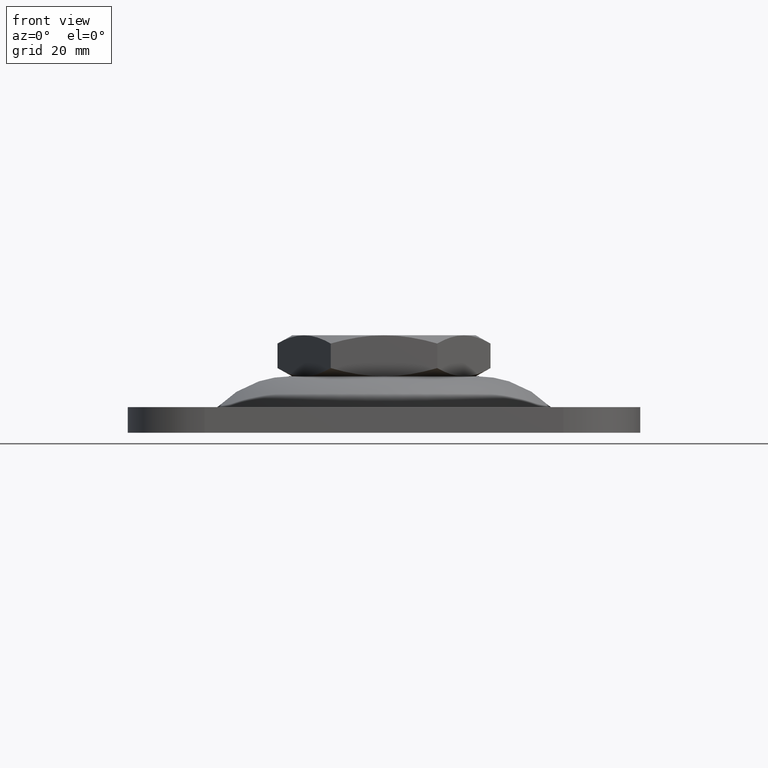
[diagram: clean part render]
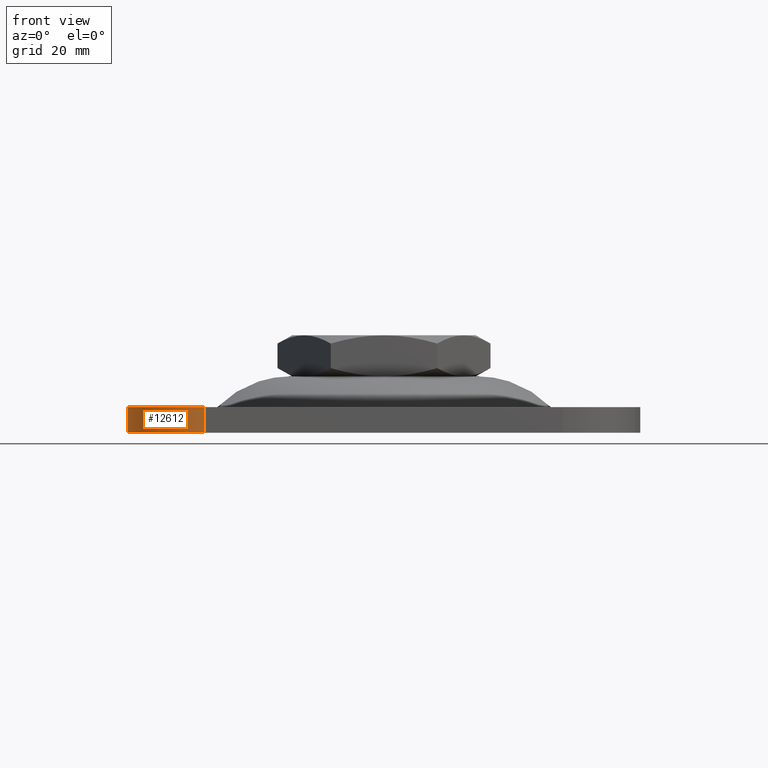
[diagram: same view with one face highlighted and labeled with its STEP entity id]
A machine part, front view. The second image highlights one B-rep face of the part: STEP entity #12612.
In plain terms, the highlighted cylindrical surface (partial cylindrical patch) has radius 15 mm, axis along (0, 0, 1).
Its self-contained STEP definition (entity closure, byte-faithful):
#252 = VERTEX_POINT ( 'NONE', #12864 ) ;
#529 = DIRECTION ( 'NONE',  ( -1.000000000000000000, 0.000000000000000000, 0.000000000000000000 ) ) ;
#608 = DIRECTION ( 'NONE',  ( 0.000000000000000000, 0.000000000000000000, -1.000000000000000000 ) ) ;
#986 = EDGE_CURVE ( 'NONE', #252, #2182, #9898, .T. ) ;
#1169 = EDGE_CURVE ( 'NONE', #2182, #14418, #3241, .T. ) ;
#1347 = CARTESIAN_POINT ( 'NONE',  ( -35.00000000000000711, -35.00000000000000000, 0.000000000000000000 ) ) ;
#2182 = VERTEX_POINT ( 'NONE', #12336 ) ;
#2320 = VECTOR ( 'NONE', #2669, 1000.000000000000000 ) ;
#2669 = DIRECTION ( 'NONE',  ( -0.000000000000000000, -0.000000000000000000, 1.000000000000000000 ) ) ;
#2863 = VECTOR ( 'NONE', #608, 1000.000000000000000 ) ;
#3241 = LINE ( 'NONE', #7695, #2863 ) ;
#3955 = CARTESIAN_POINT ( 'NONE',  ( -50.00000000000000711, -35.00000000000000000, 5.000000000000004441 ) ) ;
#3981 = EDGE_LOOP ( 'NONE', ( #6061, #6455, #7774, #9567 ) ) ;
#4090 = CARTESIAN_POINT ( 'NONE',  ( -35.00000000000000711, -35.00000000000000000, 5.000000000000004441 ) ) ;
#4746 = CARTESIAN_POINT ( 'NONE',  ( -35.00000000000000711, -35.00000000000000000, 75.71067811865478347 ) ) ;
#4773 = CARTESIAN_POINT ( 'NONE',  ( -50.00000000000000711, -35.00000000000000000, 0.000000000000000000 ) ) ;
#4955 = CIRCLE ( 'NONE', #13321, 15.00000000000000000 ) ;
#5465 = AXIS2_PLACEMENT_3D ( 'NONE', #4090, #12302, #529 ) ;
#6061 = ORIENTED_EDGE ( 'NONE', *, *, #986, .F. ) ;
#6455 = ORIENTED_EDGE ( 'NONE', *, *, #15119, .F. ) ;
#6867 = CARTESIAN_POINT ( 'NONE',  ( -35.00000000000000711, -50.00000000000000000, 0.000000000000000000 ) ) ;
#7029 = DIRECTION ( 'NONE',  ( 0.000000000000000000, 0.000000000000000000, 1.000000000000000000 ) ) ;
#7055 = VERTEX_POINT ( 'NONE', #4773 ) ;
#7234 = DIRECTION ( 'NONE',  ( 1.000000000000000000, 0.000000000000000000, 0.000000000000000000 ) ) ;
#7695 = CARTESIAN_POINT ( 'NONE',  ( -35.00000000000000711, -50.00000000000000000, 0.000000000000000000 ) ) ;
#7774 = ORIENTED_EDGE ( 'NONE', *, *, #13221, .F. ) ;
#9351 = LINE ( 'NONE', #3955, #2320 ) ;
#9567 = ORIENTED_EDGE ( 'NONE', *, *, #1169, .F. ) ;
#9898 = CIRCLE ( 'NONE', #5465, 15.00000000000000000 ) ;
#12014 = DIRECTION ( 'NONE',  ( 1.000000000000000000, 0.000000000000000000, 0.000000000000000000 ) ) ;
#12061 = DIRECTION ( 'NONE',  ( 0.000000000000000000, 0.000000000000000000, -1.000000000000000000 ) ) ;
#12102 = CYLINDRICAL_SURFACE ( 'NONE', #13034, 15.00000000000000000 ) ;
#12302 = DIRECTION ( 'NONE',  ( -0.000000000000000000, -0.000000000000000000, 1.000000000000000000 ) ) ;
#12336 = CARTESIAN_POINT ( 'NONE',  ( -35.00000000000000711, -50.00000000000000000, 5.000000000000004441 ) ) ;
#12612 = ADVANCED_FACE ( 'NONE', ( #14250 ), #12102, .T. ) ;
#12864 = CARTESIAN_POINT ( 'NONE',  ( -50.00000000000000711, -35.00000000000000000, 5.000000000000004441 ) ) ;
#13034 = AXIS2_PLACEMENT_3D ( 'NONE', #4746, #7029, #7234 ) ;
#13221 = EDGE_CURVE ( 'NONE', #14418, #7055, #4955, .T. ) ;
#13321 = AXIS2_PLACEMENT_3D ( 'NONE', #1347, #12061, #12014 ) ;
#14250 = FACE_OUTER_BOUND ( 'NONE', #3981, .T. ) ;
#14418 = VERTEX_POINT ( 'NONE', #6867 ) ;
#15119 = EDGE_CURVE ( 'NONE', #7055, #252, #9351, .T. ) ;